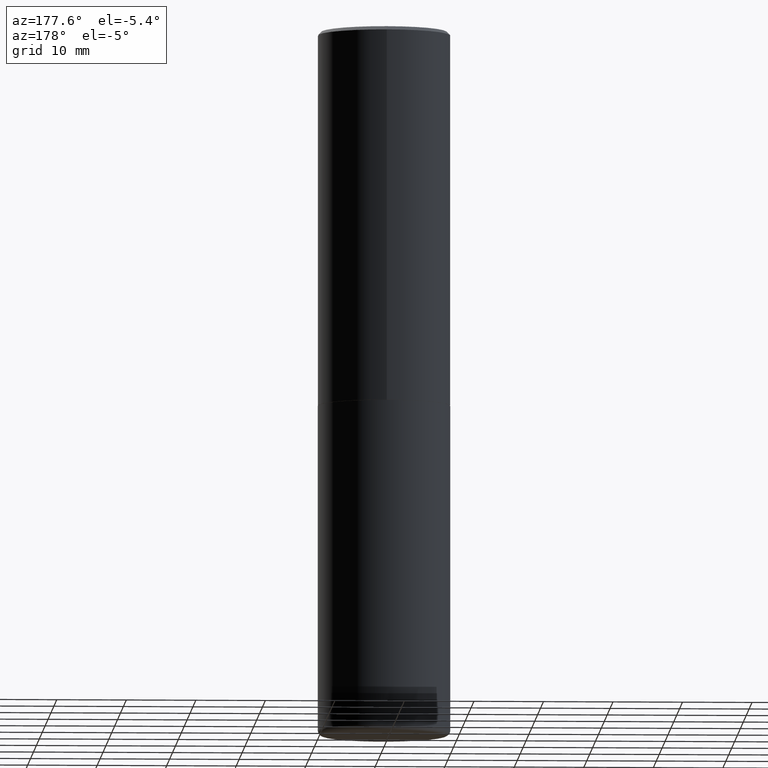
[diagram: clean part render]
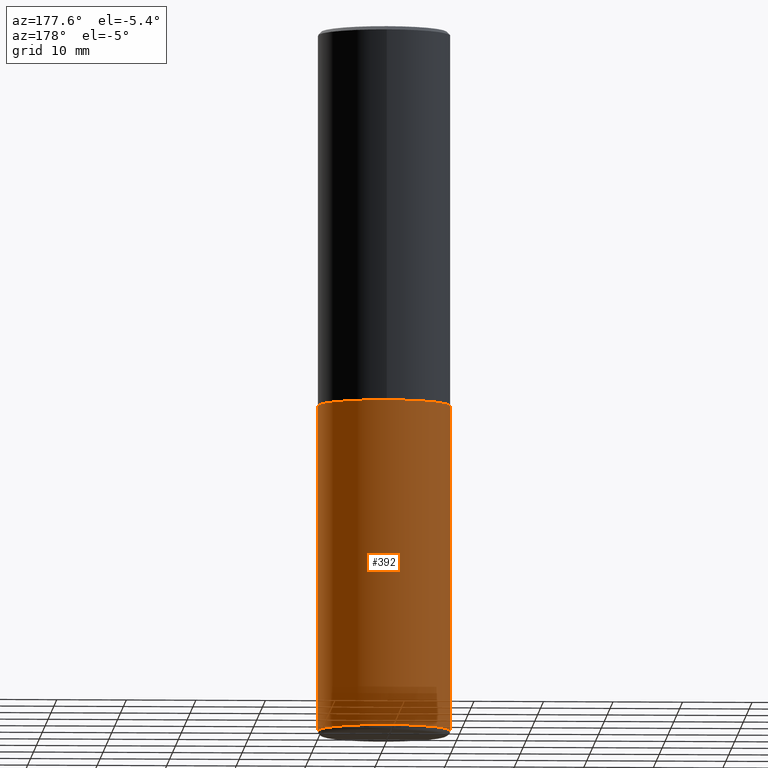
[diagram: same view with one face highlighted and labeled with its STEP entity id]
A machine part, auxiliary view. The second image highlights one B-rep face of the part: STEP entity #392.
In plain terms, the highlighted cylindrical surface (partial cylindrical patch) has radius 9.525 mm, axis along (-0, 0, 1).
Its self-contained STEP definition (entity closure, byte-faithful):
#13 = LINE ( 'NONE', #235, #143 ) ;
#38 = CARTESIAN_POINT ( 'NONE',  ( 9.708511160554992872E-29, -1.386118091520728738E-14, -3.970000000000000195 ) ) ;
#43 = FACE_OUTER_BOUND ( 'NONE', #376, .T. ) ;
#53 = CIRCLE ( 'NONE', #243, 0.3750000000000000555 ) ;
#61 = CARTESIAN_POINT ( 'NONE',  ( 0.3749999999999999445, -1.647979191933963740E-14, -3.970000000000000195 ) ) ;
#80 = ORIENTED_EDGE ( 'NONE', *, *, #138, .F. ) ;
#97 = LINE ( 'NONE', #413, #255 ) ;
#107 = CARTESIAN_POINT ( 'NONE',  ( 0.000000000000000000, 0.000000000000000000, 0.000000000000000000 ) ) ;
#125 = AXIS2_PLACEMENT_3D ( 'NONE', #107, #216, #270 ) ;
#127 = CARTESIAN_POINT ( 'NONE',  ( 5.196621213143415268E-29, -7.419397845041683624E-15, -2.125000000000000000 ) ) ;
#136 = DIRECTION ( 'NONE',  ( -2.445468806185136877E-29, 3.491481338843145188E-15, 1.000000000000000000 ) ) ;
#138 = EDGE_CURVE ( 'NONE', #147, #388, #204, .T. ) ;
#143 = VECTOR ( 'NONE', #136, 39.37007874015748143 ) ;
#146 = VERTEX_POINT ( 'NONE', #61 ) ;
#147 = VERTEX_POINT ( 'NONE', #162 ) ;
#162 = CARTESIAN_POINT ( 'NONE',  ( 0.3750000000000000555, -1.003800884917403364E-14, -2.125000000000000000 ) ) ;
#171 = ORIENTED_EDGE ( 'NONE', *, *, #228, .F. ) ;
#187 = ORIENTED_EDGE ( 'NONE', *, *, #379, .T. ) ;
#204 = CIRCLE ( 'NONE', #287, 0.3750000000000000555 ) ;
#205 = CARTESIAN_POINT ( 'NONE',  ( -0.3749999999999999445, -1.119664565610691011E-14, -3.970000000000000195 ) ) ;
#216 = DIRECTION ( 'NONE',  ( -2.445468806185136597E-29, 3.491481338843145583E-15, 1.000000000000000000 ) ) ;
#221 = VERTEX_POINT ( 'NONE', #205 ) ;
#228 = EDGE_CURVE ( 'NONE', #146, #147, #97, .T. ) ;
#234 = DIRECTION ( 'NONE',  ( 1.000000000000000000, -6.982962677686266711E-15, 0.000000000000000000 ) ) ;
#235 = CARTESIAN_POINT ( 'NONE',  ( -0.3750000000000000555, 2.664535259100376091E-15, -1.844600658845589598E-29 ) ) ;
#240 = ORIENTED_EDGE ( 'NONE', *, *, #351, .T. ) ;
#243 = AXIS2_PLACEMENT_3D ( 'NONE', #38, #396, #363 ) ;
#255 = VECTOR ( 'NONE', #259, 39.37007874015748143 ) ;
#259 = DIRECTION ( 'NONE',  ( -2.445468806185136877E-29, 3.491481338843145188E-15, 1.000000000000000000 ) ) ;
#267 = CYLINDRICAL_SURFACE ( 'NONE', #125, 0.3750000000000000555 ) ;
#270 = DIRECTION ( 'NONE',  ( 1.000000000000000000, -6.982962677686265922E-15, 4.876176775795935793E-29 ) ) ;
#287 = AXIS2_PLACEMENT_3D ( 'NONE', #127, #352, #234 ) ;
#302 = CARTESIAN_POINT ( 'NONE',  ( -0.3750000000000000555, -7.975754121024110595E-15, -2.125000000000000000 ) ) ;
#351 = EDGE_CURVE ( 'NONE', #221, #388, #13, .T. ) ;
#352 = DIRECTION ( 'NONE',  ( -2.445468806185136597E-29, 3.491481338843145583E-15, 1.000000000000000000 ) ) ;
#363 = DIRECTION ( 'NONE',  ( 1.000000000000000000, -6.982962677686266711E-15, 0.000000000000000000 ) ) ;
#376 = EDGE_LOOP ( 'NONE', ( #187, #240, #80, #171 ) ) ;
#379 = EDGE_CURVE ( 'NONE', #146, #221, #53, .T. ) ;
#388 = VERTEX_POINT ( 'NONE', #302 ) ;
#392 = ADVANCED_FACE ( 'NONE', ( #43 ), #267, .T. ) ;
#396 = DIRECTION ( 'NONE',  ( -2.445468806185136597E-29, 3.491481338843145583E-15, 1.000000000000000000 ) ) ;
#413 = CARTESIAN_POINT ( 'NONE',  ( 0.3750000000000000555, -2.618611004132350016E-15, 1.828566290923476203E-29 ) ) ;